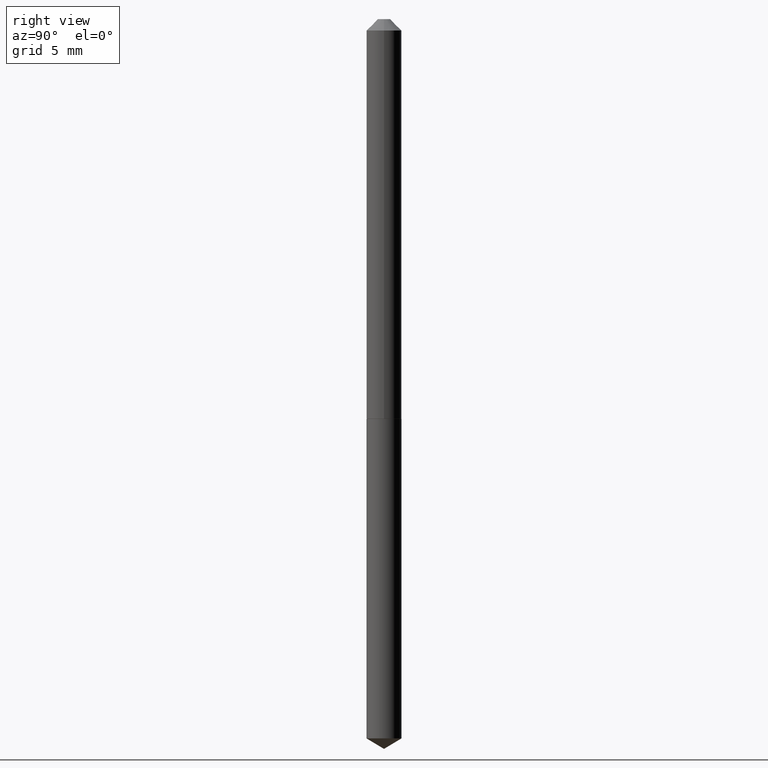
[diagram: clean part render]
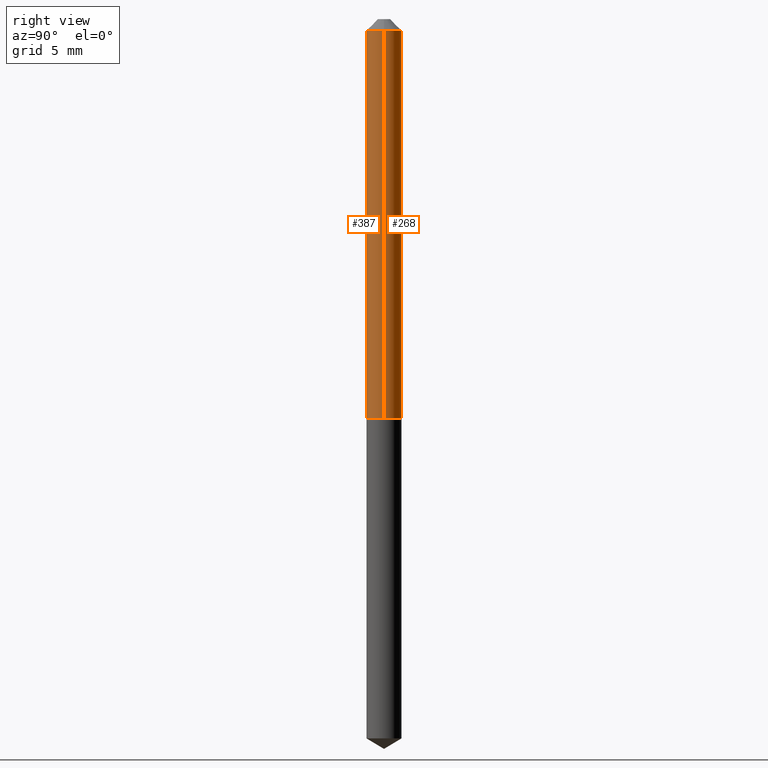
[diagram: same view with one multi-face feature highlighted, each face labeled with its STEP entity id]
A machine part, right view. The highlighted faces form ONE feature: a constant-radius fillet chain: 2 tangent blend faces with common blend radius 1.2192 mm. The faces share edges in the B-rep.
Their STEP definitions:
[1] entity #387 (Cylinder):
#11 = EDGE_CURVE ( 'NONE', #342, #301, #97, .T. ) ;
#17 = CARTESIAN_POINT ( 'NONE',  ( -0.04800000000000000794, -1.625952786105907668E-15, -0.03125000000000020123 ) ) ;
#33 = ORIENTED_EDGE ( 'NONE', *, *, #52, .T. ) ;
#38 = ORIENTED_EDGE ( 'NONE', *, *, #11, .F. ) ;
#46 = CARTESIAN_POINT ( 'NONE',  ( 0.04800000000000013284, -4.160100015231607087E-15, -1.095499999999999918 ) ) ;
#51 = CYLINDRICAL_SURFACE ( 'NONE', #319, 0.04800000000000007733 ) ;
#52 = EDGE_CURVE ( 'NONE', #254, #332, #191, .T. ) ;
#54 = EDGE_CURVE ( 'NONE', #332, #301, #211, .T. ) ;
#58 = CARTESIAN_POINT ( 'NONE',  ( -0.04800000000000007733, 3.410605131648486387E-16, -2.361088843322358304E-30 ) ) ;
#92 = CARTESIAN_POINT ( 'NONE',  ( 0.04800000000000007733, -3.351822085289413070E-16, 2.340564852382052838E-30 ) ) ;
#96 = EDGE_CURVE ( 'NONE', #254, #342, #354, .T. ) ;
#97 = CIRCLE ( 'NONE', #308, 0.04800000000000000794 ) ;
#109 = FACE_OUTER_BOUND ( 'NONE', #215, .T. ) ;
#113 = DIRECTION ( 'NONE',  ( -2.445468806185136597E-29, 3.491481338843145583E-15, 1.000000000000000000 ) ) ;
#152 = AXIS2_PLACEMENT_3D ( 'NONE', #291, #264, #358 ) ;
#160 = DIRECTION ( 'NONE',  ( 1.000000000000000000, -6.982962677686266711E-15, 0.000000000000000000 ) ) ;
#167 = CARTESIAN_POINT ( 'NONE',  ( 7.642090019328601786E-31, -1.091087918388490144E-16, -0.03125000000000020123 ) ) ;
#171 = DIRECTION ( 'NONE',  ( 1.000000000000000000, -6.982962677686265922E-15, 4.876176775795935793E-29 ) ) ;
#191 = CIRCLE ( 'NONE', #152, 0.04800000000000013284 ) ;
#211 = LINE ( 'NONE', #92, #293 ) ;
#215 = EDGE_LOOP ( 'NONE', ( #333, #33, #363, #38 ) ) ;
#254 = VERTEX_POINT ( 'NONE', #306 ) ;
#264 = DIRECTION ( 'NONE',  ( -2.445468806185136597E-29, 3.491481338843145583E-15, 1.000000000000000000 ) ) ;
#277 = DIRECTION ( 'NONE',  ( -2.445468806185136597E-29, 3.491481338843145583E-15, 1.000000000000000000 ) ) ;
#291 = CARTESIAN_POINT ( 'NONE',  ( 2.679011077175817397E-29, -3.824917806702665780E-15, -1.095499999999999918 ) ) ;
#293 = VECTOR ( 'NONE', #321, 39.37007874015748143 ) ;
#301 = VERTEX_POINT ( 'NONE', #343 ) ;
#306 = CARTESIAN_POINT ( 'NONE',  ( -0.04800000000000013284, -3.483857293537816599E-15, -1.095499999999999918 ) ) ;
#308 = AXIS2_PLACEMENT_3D ( 'NONE', #167, #277, #160 ) ;
#310 = CARTESIAN_POINT ( 'NONE',  ( 0.000000000000000000, 0.000000000000000000, 0.000000000000000000 ) ) ;
#319 = AXIS2_PLACEMENT_3D ( 'NONE', #310, #113, #171 ) ;
#321 = DIRECTION ( 'NONE',  ( -2.445468806185136877E-29, 3.491481338843145188E-15, 1.000000000000000000 ) ) ;
#332 = VERTEX_POINT ( 'NONE', #46 ) ;
#333 = ORIENTED_EDGE ( 'NONE', *, *, #96, .F. ) ;
#342 = VERTEX_POINT ( 'NONE', #17 ) ;
#343 = CARTESIAN_POINT ( 'NONE',  ( 0.04800000000000000794, -4.442910003677899146E-16, -0.03125000000000020123 ) ) ;
#354 = LINE ( 'NONE', #58, #385 ) ;
#358 = DIRECTION ( 'NONE',  ( 1.000000000000000000, -6.982962677686262766E-15, 0.000000000000000000 ) ) ;
#363 = ORIENTED_EDGE ( 'NONE', *, *, #54, .T. ) ;
#385 = VECTOR ( 'NONE', #386, 39.37007874015748143 ) ;
#386 = DIRECTION ( 'NONE',  ( -2.445468806185136877E-29, 3.491481338843145188E-15, 1.000000000000000000 ) ) ;
#387 = ADVANCED_FACE ( 'NONE', ( #109 ), #51, .T. ) ;
[2] entity #268 (Cylinder):
#10 = ORIENTED_EDGE ( 'NONE', *, *, #54, .F. ) ;
#17 = CARTESIAN_POINT ( 'NONE',  ( -0.04800000000000000794, -1.625952786105907668E-15, -0.03125000000000020123 ) ) ;
#46 = CARTESIAN_POINT ( 'NONE',  ( 0.04800000000000013284, -4.160100015231607087E-15, -1.095499999999999918 ) ) ;
#54 = EDGE_CURVE ( 'NONE', #332, #301, #211, .T. ) ;
#58 = CARTESIAN_POINT ( 'NONE',  ( -0.04800000000000007733, 3.410605131648486387E-16, -2.361088843322358304E-30 ) ) ;
#64 = CIRCLE ( 'NONE', #280, 0.04800000000000000794 ) ;
#67 = DIRECTION ( 'NONE',  ( -2.445468806185136597E-29, 3.491481338843145583E-15, 1.000000000000000000 ) ) ;
#69 = ORIENTED_EDGE ( 'NONE', *, *, #377, .T. ) ;
#80 = CARTESIAN_POINT ( 'NONE',  ( 0.000000000000000000, 0.000000000000000000, 0.000000000000000000 ) ) ;
#92 = CARTESIAN_POINT ( 'NONE',  ( 0.04800000000000007733, -3.351822085289413070E-16, 2.340564852382052838E-30 ) ) ;
#93 = EDGE_LOOP ( 'NONE', ( #69, #225, #182, #10 ) ) ;
#96 = EDGE_CURVE ( 'NONE', #254, #342, #354, .T. ) ;
#118 = CIRCLE ( 'NONE', #309, 0.04800000000000013284 ) ;
#139 = CARTESIAN_POINT ( 'NONE',  ( 7.642090019328601786E-31, -1.091087918388490144E-16, -0.03125000000000020123 ) ) ;
#144 = CARTESIAN_POINT ( 'NONE',  ( 2.679011077175817397E-29, -3.824917806702665780E-15, -1.095499999999999918 ) ) ;
#166 = FACE_OUTER_BOUND ( 'NONE', #93, .T. ) ;
#182 = ORIENTED_EDGE ( 'NONE', *, *, #344, .F. ) ;
#211 = LINE ( 'NONE', #92, #293 ) ;
#216 = AXIS2_PLACEMENT_3D ( 'NONE', #80, #376, #365 ) ;
#225 = ORIENTED_EDGE ( 'NONE', *, *, #96, .T. ) ;
#229 = DIRECTION ( 'NONE',  ( -2.445468806185136597E-29, 3.491481338843145583E-15, 1.000000000000000000 ) ) ;
#254 = VERTEX_POINT ( 'NONE', #306 ) ;
#268 = ADVANCED_FACE ( 'NONE', ( #166 ), #368, .T. ) ;
#280 = AXIS2_PLACEMENT_3D ( 'NONE', #139, #67, #378 ) ;
#285 = DIRECTION ( 'NONE',  ( 1.000000000000000000, -6.982962677686262766E-15, 0.000000000000000000 ) ) ;
#293 = VECTOR ( 'NONE', #321, 39.37007874015748143 ) ;
#301 = VERTEX_POINT ( 'NONE', #343 ) ;
#306 = CARTESIAN_POINT ( 'NONE',  ( -0.04800000000000013284, -3.483857293537816599E-15, -1.095499999999999918 ) ) ;
#309 = AXIS2_PLACEMENT_3D ( 'NONE', #144, #229, #285 ) ;
#321 = DIRECTION ( 'NONE',  ( -2.445468806185136877E-29, 3.491481338843145188E-15, 1.000000000000000000 ) ) ;
#332 = VERTEX_POINT ( 'NONE', #46 ) ;
#342 = VERTEX_POINT ( 'NONE', #17 ) ;
#343 = CARTESIAN_POINT ( 'NONE',  ( 0.04800000000000000794, -4.442910003677899146E-16, -0.03125000000000020123 ) ) ;
#344 = EDGE_CURVE ( 'NONE', #301, #342, #64, .T. ) ;
#354 = LINE ( 'NONE', #58, #385 ) ;
#365 = DIRECTION ( 'NONE',  ( 1.000000000000000000, -6.982962677686265922E-15, 4.876176775795935793E-29 ) ) ;
#368 = CYLINDRICAL_SURFACE ( 'NONE', #216, 0.04800000000000007733 ) ;
#376 = DIRECTION ( 'NONE',  ( -2.445468806185136597E-29, 3.491481338843145583E-15, 1.000000000000000000 ) ) ;
#377 = EDGE_CURVE ( 'NONE', #332, #254, #118, .T. ) ;
#378 = DIRECTION ( 'NONE',  ( 1.000000000000000000, -6.982962677686266711E-15, 0.000000000000000000 ) ) ;
#385 = VECTOR ( 'NONE', #386, 39.37007874015748143 ) ;
#386 = DIRECTION ( 'NONE',  ( -2.445468806185136877E-29, 3.491481338843145188E-15, 1.000000000000000000 ) ) ;